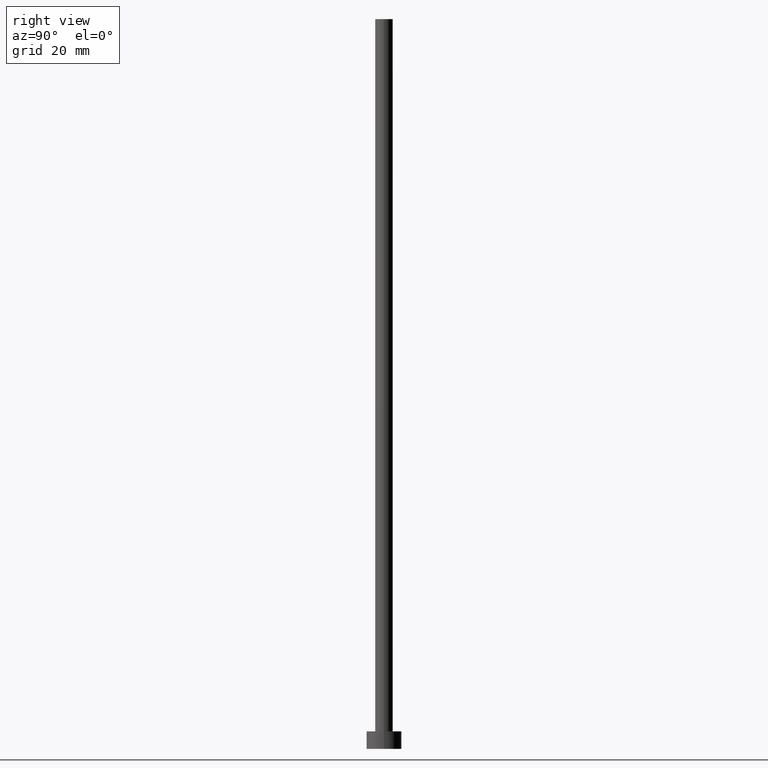
[diagram: clean part render]
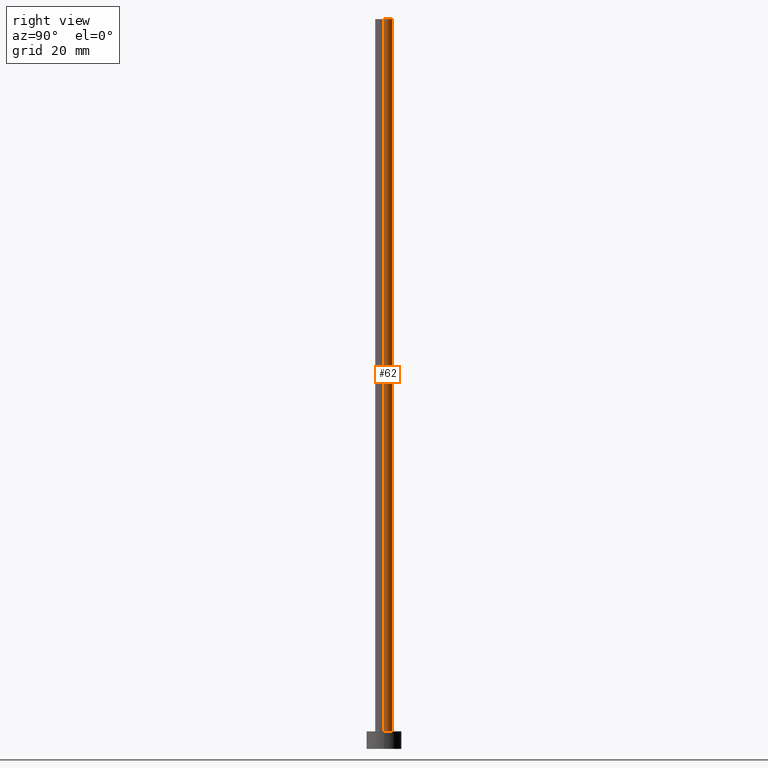
[diagram: same view with one face highlighted and labeled with its STEP entity id]
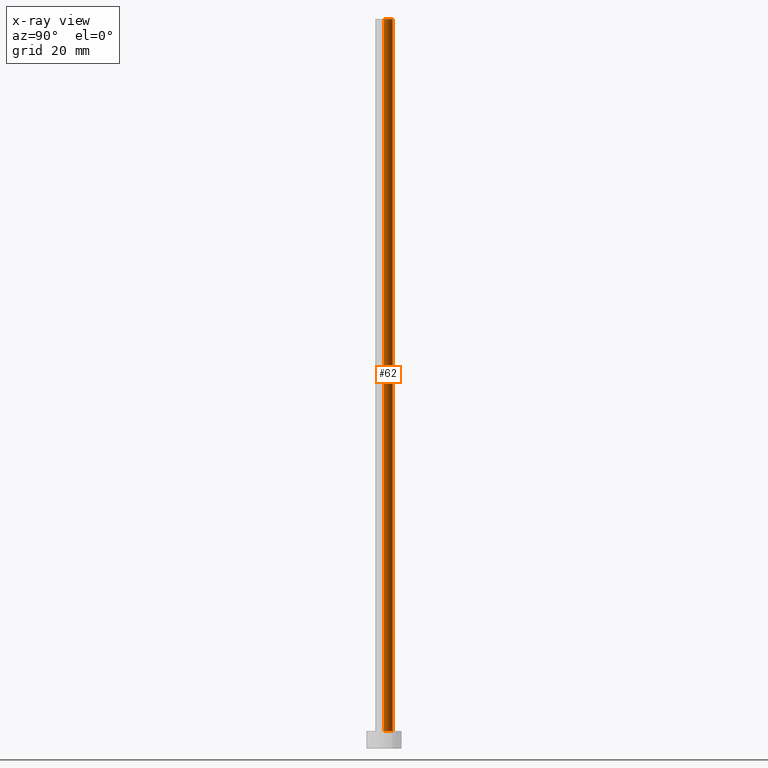
[diagram: x-ray of the same camera — body ghosted, the highlighted face saturated]
A machine part, right view. The second image highlights one B-rep face of the part: STEP entity #62.
The next image is the same camera in x-ray: the body ghosted, the highlighted face saturated — about 0% of this face is hidden behind the body in this view.
In plain terms, the highlighted cylindrical surface (edge-blend (fillet) strip) has radius 1.5 mm, axis along (-0, -0, -1).
Its self-contained STEP definition (entity closure, byte-faithful):
#2 = DIRECTION ( 'NONE',  ( 0.000000000000000000, 0.000000000000000000, 1.000000000000000000 ) ) ;
#8 = AXIS2_PLACEMENT_3D ( 'NONE', #182, #2, #85 ) ;
#10 = LINE ( 'NONE', #248, #233 ) ;
#15 = CIRCLE ( 'NONE', #8, 1.500000000000000222 ) ;
#17 = CARTESIAN_POINT ( 'NONE',  ( 1.500000000000000222, 1.836970198721029934E-16, 125.0000000000000000 ) ) ;
#29 = LINE ( 'NONE', #17, #67 ) ;
#41 = CARTESIAN_POINT ( 'NONE',  ( -1.500000000000000222, 0.000000000000000000, 125.0000000000000000 ) ) ;
#62 = ADVANCED_FACE ( 'NONE', ( #247 ), #95, .T. ) ;
#64 = ORIENTED_EDGE ( 'NONE', *, *, #97, .F. ) ;
#67 = VECTOR ( 'NONE', #153, 1000.000000000000000 ) ;
#71 = ORIENTED_EDGE ( 'NONE', *, *, #213, .T. ) ;
#73 = CARTESIAN_POINT ( 'NONE',  ( 0.000000000000000000, 0.000000000000000000, 125.0000000000000000 ) ) ;
#74 = DIRECTION ( 'NONE',  ( 1.000000000000000000, 0.000000000000000000, 0.000000000000000000 ) ) ;
#85 = DIRECTION ( 'NONE',  ( 1.000000000000000000, 0.000000000000000000, 0.000000000000000000 ) ) ;
#86 = AXIS2_PLACEMENT_3D ( 'NONE', #236, #164, #74 ) ;
#95 = CYLINDRICAL_SURFACE ( 'NONE', #104, 1.500000000000000222 ) ;
#97 = EDGE_CURVE ( 'NONE', #110, #216, #10, .T. ) ;
#104 = AXIS2_PLACEMENT_3D ( 'NONE', #73, #244, #245 ) ;
#110 = VERTEX_POINT ( 'NONE', #41 ) ;
#116 = ORIENTED_EDGE ( 'NONE', *, *, #131, .T. ) ;
#121 = ORIENTED_EDGE ( 'NONE', *, *, #178, .F. ) ;
#131 = EDGE_CURVE ( 'NONE', #201, #147, #29, .T. ) ;
#142 = CARTESIAN_POINT ( 'NONE',  ( 1.500000000000000222, 1.836970198721029934E-16, 125.0000000000000000 ) ) ;
#147 = VERTEX_POINT ( 'NONE', #171 ) ;
#153 = DIRECTION ( 'NONE',  ( -0.000000000000000000, -0.000000000000000000, -1.000000000000000000 ) ) ;
#164 = DIRECTION ( 'NONE',  ( 0.000000000000000000, 0.000000000000000000, 1.000000000000000000 ) ) ;
#171 = CARTESIAN_POINT ( 'NONE',  ( 1.500000000000000222, 1.836970198721029934E-16, 3.000000000000000000 ) ) ;
#173 = CIRCLE ( 'NONE', #86, 1.500000000000000222 ) ;
#178 = EDGE_CURVE ( 'NONE', #201, #110, #173, .T. ) ;
#182 = CARTESIAN_POINT ( 'NONE',  ( 0.000000000000000000, 0.000000000000000000, 3.000000000000000000 ) ) ;
#201 = VERTEX_POINT ( 'NONE', #142 ) ;
#213 = EDGE_CURVE ( 'NONE', #147, #216, #15, .T. ) ;
#216 = VERTEX_POINT ( 'NONE', #230 ) ;
#220 = DIRECTION ( 'NONE',  ( -0.000000000000000000, -0.000000000000000000, -1.000000000000000000 ) ) ;
#223 = EDGE_LOOP ( 'NONE', ( #121, #116, #71, #64 ) ) ;
#230 = CARTESIAN_POINT ( 'NONE',  ( -1.500000000000000222, 0.000000000000000000, 3.000000000000000000 ) ) ;
#233 = VECTOR ( 'NONE', #220, 1000.000000000000000 ) ;
#236 = CARTESIAN_POINT ( 'NONE',  ( 0.000000000000000000, 0.000000000000000000, 125.0000000000000000 ) ) ;
#244 = DIRECTION ( 'NONE',  ( -0.000000000000000000, -0.000000000000000000, -1.000000000000000000 ) ) ;
#245 = DIRECTION ( 'NONE',  ( -1.000000000000000000, 0.000000000000000000, 0.000000000000000000 ) ) ;
#247 = FACE_OUTER_BOUND ( 'NONE', #223, .T. ) ;
#248 = CARTESIAN_POINT ( 'NONE',  ( -1.500000000000000222, 0.000000000000000000, 125.0000000000000000 ) ) ;